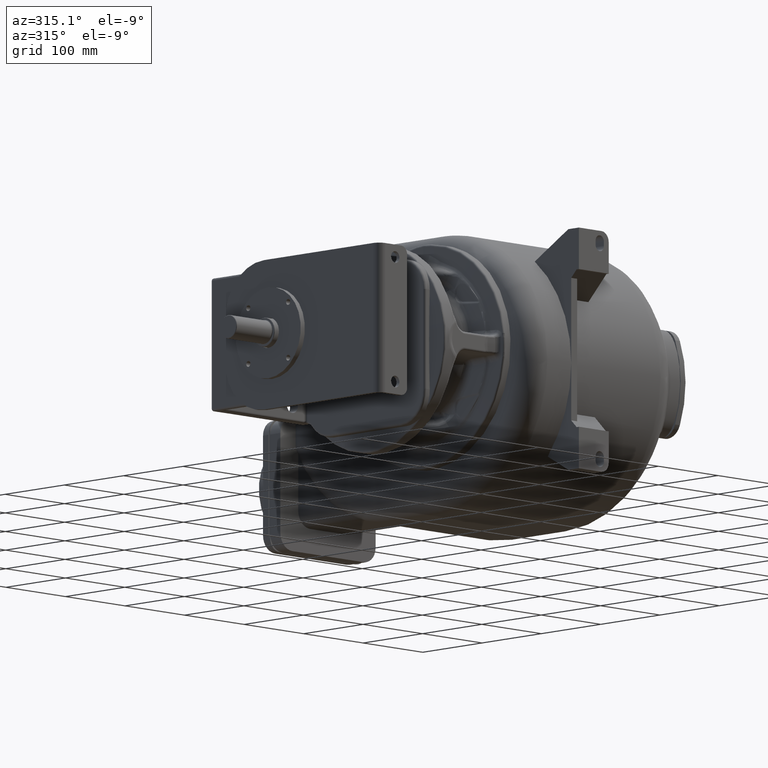
[diagram: clean part render]
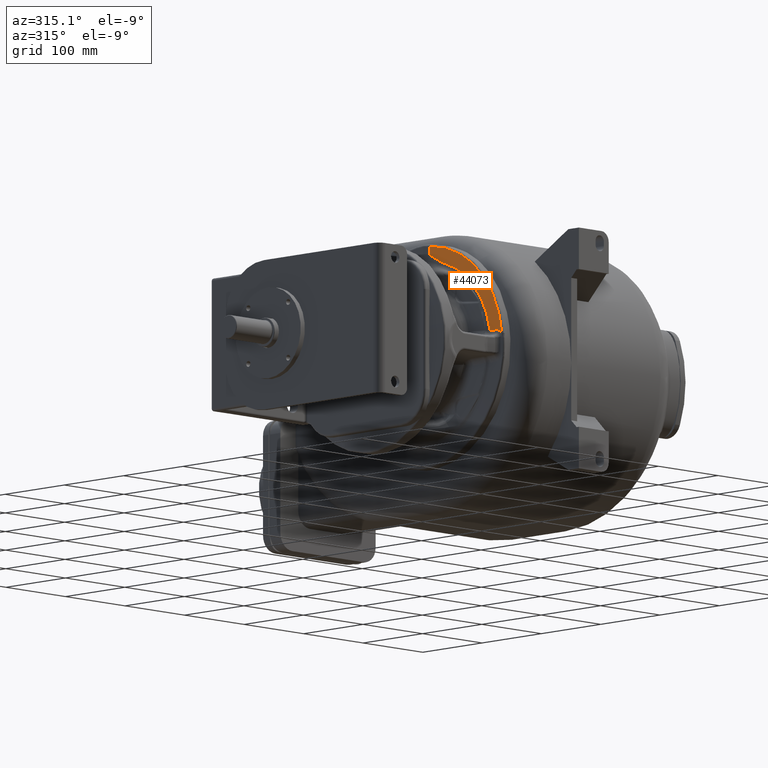
[diagram: same view with one face highlighted and labeled with its STEP entity id]
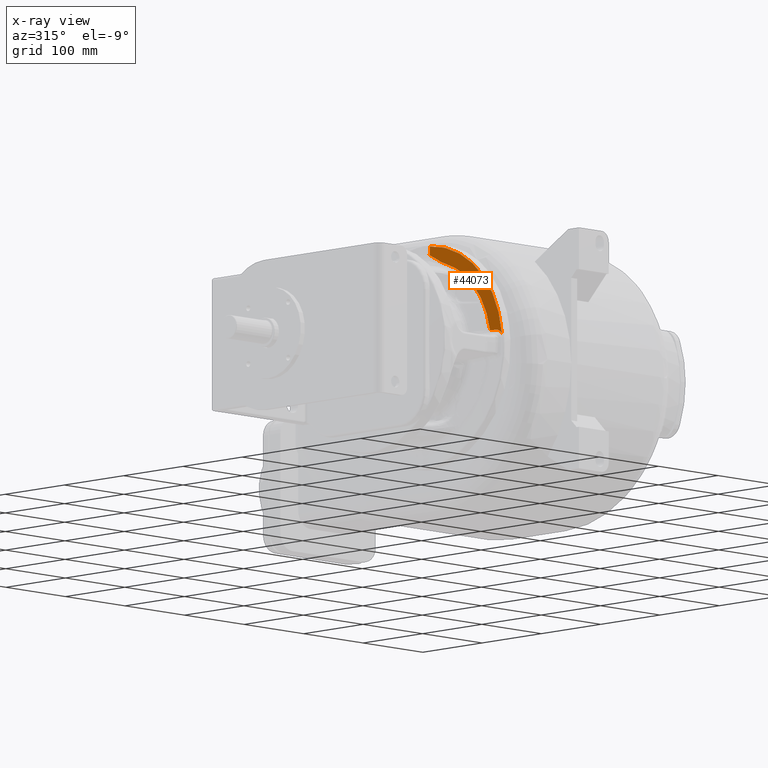
[diagram: x-ray of the same camera — body ghosted, the highlighted face saturated]
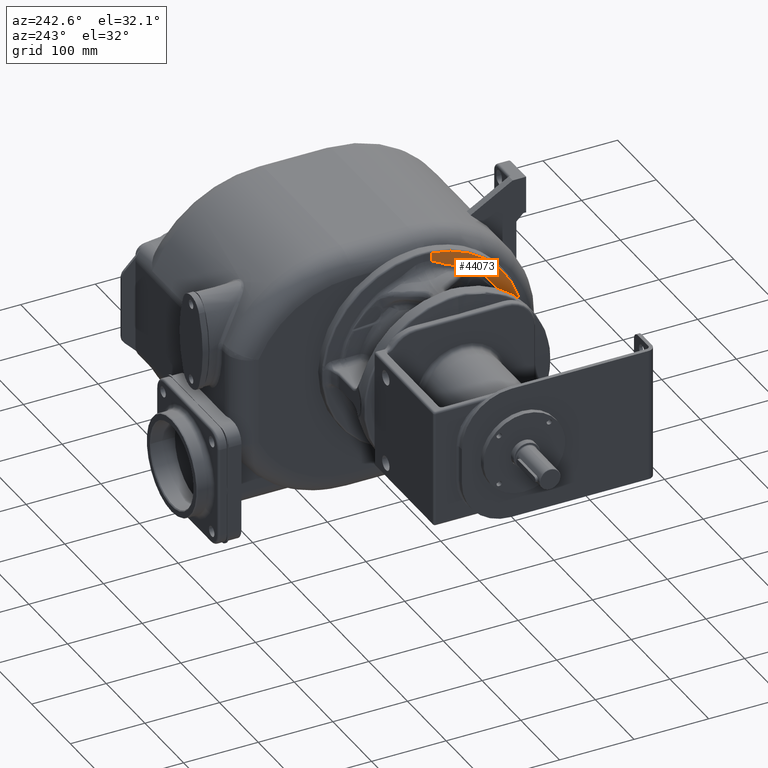
[diagram: same view with one face highlighted and labeled with its STEP entity id]
A machine part, auxiliary view. The second image highlights one B-rep face of the part: STEP entity #44073.
The next image is the same camera in x-ray: the body ghosted, the highlighted face saturated — about 0% of this face is hidden behind the body in this view.
A second angle (auxiliary view) of the same face is appended — the face is thin or edge-on in the first view.
In plain terms, the highlighted conical surface has half-angle 88 deg.
Its self-contained STEP definition (entity closure, byte-faithful):
#8521=CARTESIAN_POINT('',(-1.165842551305E2,1.8E2,0.E0));
#8522=DIRECTION('',(1.E0,0.E0,0.E0));
#8523=DIRECTION('',(0.E0,-8.055928439243E-2,9.967498190109E-1));
#8524=AXIS2_PLACEMENT_3D('',#8521,#8522,#8523);
#8526=CARTESIAN_POINT('',(-1.168798171493E2,5.735625674474E1,1.910878188171E1));
#8527=CARTESIAN_POINT('',(-1.169210198581E2,5.855966694110E1,1.916836518389E1));
#8528=CARTESIAN_POINT('',(-1.170010274678E2,6.089792819758E1,1.928410784437E1));
#8529=CARTESIAN_POINT('',(-1.171130718259E2,6.417655126071E1,1.944631688392E1));
#8530=CARTESIAN_POINT('',(-1.171840829582E2,6.625711039927E1,1.954919968380E1));
#8531=CARTESIAN_POINT('',(-1.172185369256E2,6.726722471379E1,1.959913672011E1));
#8533=CARTESIAN_POINT('',(-1.172185369238E2,1.8E2,0.E0));
#8534=DIRECTION('',(-1.E0,0.E0,0.E0));
#8535=DIRECTION('',(0.E0,-9.852214360073E-1,1.712854986031E-1));
#8536=AXIS2_PLACEMENT_3D('',#8533,#8534,#8535);
#8538=CARTESIAN_POINT('',(-1.172185368154E2,1.133798742975E2,9.302990717850E1));
#8539=CARTESIAN_POINT('',(-1.172185360093E2,1.135647022990E2,9.316227437963E1));
#8540=CARTESIAN_POINT('',(-1.172185059070E2,1.139437177598E2,9.343312496660E1));
#8541=CARTESIAN_POINT('',(-1.172183167907E2,1.145412702782E2,9.385941024134E1));
#8542=CARTESIAN_POINT('',(-1.172179985174E2,1.151642939519E2,9.430199851293E1));
#8543=CARTESIAN_POINT('',(-1.172175515021E2,1.158104575063E2,9.475853310711E1));
#8544=CARTESIAN_POINT('',(-1.172169824603E2,1.164740587730E2,9.522433844434E1));
#8545=CARTESIAN_POINT('',(-1.172163128499E2,1.171685208852E2,9.570706764520E1));
#8546=CARTESIAN_POINT('',(-1.172155464809E2,1.179158977222E2,9.621989671028E1));
#8547=CARTESIAN_POINT('',(-1.172146780051E2,1.187343653756E2,9.677287896231E1));
#8548=CARTESIAN_POINT('',(-1.172137360200E2,1.196548630786E2,9.738170347698E1));
#8549=CARTESIAN_POINT('',(-1.172128016808E2,1.206479256903E2,9.802148917607E1));
#8550=CARTESIAN_POINT('',(-1.172119838503E2,1.216317471850E2,9.863756766486E1));
#8551=CARTESIAN_POINT('',(-1.172113216764E2,1.226073313168E2,9.923026465383E1));
#8552=CARTESIAN_POINT('',(-1.172107766090E2,1.235915940311E2,9.981103394124E1));
#8553=CARTESIAN_POINT('',(-1.172103779246E2,1.246003926516E2,1.003876104206E2));
#8554=CARTESIAN_POINT('',(-1.172101256044E2,1.256483620897E2,1.009672454355E2));
#8555=CARTESIAN_POINT('',(-1.172100605760E2,1.263882677229E2,1.013626134630E2));
#8556=CARTESIAN_POINT('',(-1.172100603533E2,1.267675014529E2,1.015613913093E2));
#8558=CARTESIAN_POINT('',(-1.172100603533E2,1.267675014529E2,1.015613913093E2));
#8559=CARTESIAN_POINT('',(-1.172100602537E2,1.276112979688E2,1.020036570152E2));
#8560=CARTESIAN_POINT('',(-1.172100617634E2,1.292178677266E2,1.028187993180E2));
#8561=CARTESIAN_POINT('',(-1.172100603825E2,1.320577748821E2,1.041820271540E2));
#8562=CARTESIAN_POINT('',(-1.172100595450E2,1.362487916019E2,1.060381378145E2));
#8563=CARTESIAN_POINT('',(-1.172100619591E2,1.397068043739E2,1.073709466091E2));
#8564=CARTESIAN_POINT('',(-1.172100543490E2,1.423583350940E2,1.083181903907E2));
#8565=CARTESIAN_POINT('',(-1.172100761382E2,1.440279517105E2,1.088812226622E2));
#8566=CARTESIAN_POINT('',(-1.172097077547E2,1.453516541094E2,1.093192332206E2));
#8567=CARTESIAN_POINT('',(-1.172089713134E2,1.463514432409E2,1.096521977780E2));
#8568=CARTESIAN_POINT('',(-1.172080322542E2,1.471217952662E2,1.099132521045E2));
#8569=CARTESIAN_POINT('',(-1.172066091329E2,1.479431168032E2,1.101985252556E2));
#8570=CARTESIAN_POINT('',(-1.172046268872E2,1.486966820802E2,1.104736254670E2));
#8571=CARTESIAN_POINT('',(-1.172021145801E2,1.493374951870E2,1.107274907233E2));
#8572=CARTESIAN_POINT('',(-1.172001935124E2,1.496726144368E2,1.108763643674E2));
#8573=CARTESIAN_POINT('',(-1.171991278969E2,1.498233508606E2,1.109489858019E2));
#8575=CARTESIAN_POINT('',(-1.171991278969E2,1.498233508606E2,1.109489858019E2));
#8576=CARTESIAN_POINT('',(-1.171972061132E2,1.500951670541E2,1.110799475244E2));
#8577=CARTESIAN_POINT('',(-1.171930377829E2,1.506415416474E2,1.113498732313E2));
#8578=CARTESIAN_POINT('',(-1.171858545700E2,1.514682801428E2,1.117769184754E2));
#8579=CARTESIAN_POINT('',(-1.171777118351E2,1.523093864148E2,1.122284913684E2));
#8580=CARTESIAN_POINT('',(-1.171685871496E2,1.531697828531E2,1.127059739508E2));
#8581=CARTESIAN_POINT('',(-1.171584453661E2,1.540551897870E2,1.132111343064E2));
#8582=CARTESIAN_POINT('',(-1.171472449455E2,1.549718263494E2,1.137458622076E2));
#8583=CARTESIAN_POINT('',(-1.171348461169E2,1.559333041260E2,1.143161621185E2));
#8584=CARTESIAN_POINT('',(-1.171216463315E2,1.569136064544E2,1.149036754697E2));
#8585=CARTESIAN_POINT('',(-1.171085588355E2,1.578560349857E2,1.154704720485E2));
#8586=CARTESIAN_POINT('',(-1.170957253777E2,1.587628578553E2,1.160142424325E2));
#8587=CARTESIAN_POINT('',(-1.170827967868E2,1.596667289450E2,1.165519145019E2));
#8588=CARTESIAN_POINT('',(-1.170696556861E2,1.605833294267E2,1.170896061006E2));
#8589=CARTESIAN_POINT('',(-1.170563704506E2,1.615142720483E2,1.176253385191E2));
#8590=CARTESIAN_POINT('',(-1.170429733474E2,1.624657913490E2,1.181588569848E2));
#8591=CARTESIAN_POINT('',(-1.170293541747E2,1.634532689936E2,1.186950953128E2));
#8592=CARTESIAN_POINT('',(-1.170154923507E2,1.644896587600E2,1.192353692866E2));
#8593=CARTESIAN_POINT('',(-1.170019492797E2,1.655457774785E2,1.197586408855E2));
#8594=CARTESIAN_POINT('',(-1.169891972628E2,1.665929135170E2,1.202476930862E2));
#8595=CARTESIAN_POINT('',(-1.169776752563E2,1.675992923858E2,1.206872392527E2));
#8596=CARTESIAN_POINT('',(-1.169676494408E2,1.685357448913E2,1.210675547481E2));
#8597=CARTESIAN_POINT('',(-1.169622460123E2,1.690826993529E2,1.212734652601E2));
#8598=CARTESIAN_POINT('',(-1.169597662183E2,1.693385990095E2,1.213666450580E2));
#8600=CARTESIAN_POINT('',(-1.169597662183E2,1.693385990095E2,1.213666450580E2));
#8601=CARTESIAN_POINT('',(-1.169205464799E2,1.693364544670E2,1.224938880308E2));
#8602=CARTESIAN_POINT('',(-1.168404449319E2,1.693321307324E2,1.247959184219E2));
#8603=CARTESIAN_POINT('',(-1.167158320104E2,1.693255787529E2,1.283764727084E2));
#8604=CARTESIAN_POINT('',(-1.166287273427E2,1.693211151862E2,1.308788278720E2));
#8605=CARTESIAN_POINT('',(-1.165842551332E2,1.693188661217E2,1.321563161882E2));
#15576=CARTESIAN_POINT('',(-1.168798171493E2,5.735625674474E1,
1.910878188171E1));
#15577=CARTESIAN_POINT('',(-1.168750337735E2,5.721652057332E1,
1.910186046078E1));
#15578=CARTESIAN_POINT('',(-1.168655045016E2,5.693749489688E1,
1.908318384825E1));
#15579=CARTESIAN_POINT('',(-1.168513236096E2,5.651998928866E1,
1.904068568416E1));
#15580=CARTESIAN_POINT('',(-1.168372830638E2,5.610445313055E1,
1.898379115081E1));
#15581=CARTESIAN_POINT('',(-1.168234026691E2,5.569148772437E1,
1.891259291918E1));
#15582=CARTESIAN_POINT('',(-1.168097040754E2,5.528178620098E1,
1.882720000105E1));
#15583=CARTESIAN_POINT('',(-1.167962072786E2,5.487599471481E1,
1.872776600063E1));
#15584=CARTESIAN_POINT('',(-1.167829307057E2,5.447472758159E1,
1.861450334431E1));
#15585=CARTESIAN_POINT('',(-1.167698926570E2,5.407859932395E1,
1.848764197995E1));
#15586=CARTESIAN_POINT('',(-1.167571097920E2,5.368818107084E1,
1.834742846119E1));
#15587=CARTESIAN_POINT('',(-1.167445956809E2,5.330395330242E1,
1.819409246685E1));
#15588=CARTESIAN_POINT('',(-1.167323640834E2,5.292641168329E1,
1.802792424767E1));
#15589=CARTESIAN_POINT('',(-1.167204281870E2,5.255603692716E1,
1.784922284602E1));
#15590=CARTESIAN_POINT('',(-1.167088011682E2,5.219331097484E1,
1.765829798940E1));
#15591=CARTESIAN_POINT('',(-1.166974963581E2,5.183872173991E1,
1.745547263393E1));
#15592=CARTESIAN_POINT('',(-1.166865261961E2,5.149273433328E1,
1.724109636395E1));
#15593=CARTESIAN_POINT('',(-1.166759022821E2,5.115579808441E1,
1.701559155650E1));
#15594=CARTESIAN_POINT('',(-1.166656340737E2,5.082829251460E1,
1.677933484700E1));
#15595=CARTESIAN_POINT('',(-1.166557294645E2,5.051054655917E1,
1.653267365085E1));
#15596=CARTESIAN_POINT('',(-1.166461967343E2,5.020289754450E1,
1.627594656049E1));
#15597=CARTESIAN_POINT('',(-1.166370426296E2,4.990564327267E1,
1.600954384886E1));
#15598=CARTESIAN_POINT('',(-1.166282748347E2,4.961911349595E1,
1.573391821270E1));
#15599=CARTESIAN_POINT('',(-1.166199014122E2,4.934364729805E1,
1.544952889518E1));
#15600=CARTESIAN_POINT('',(-1.166119301495E2,4.907956841055E1,
1.515682919421E1));
#15601=CARTESIAN_POINT('',(-1.166043679240E2,4.882718357650E1,
1.485627730100E1));
#15602=CARTESIAN_POINT('',(-1.165972206995E2,4.858673431246E1,
1.454842494798E1));
#15603=CARTESIAN_POINT('',(-1.165904878134E2,4.835842950764E1,
1.423376326425E1));
#15604=CARTESIAN_POINT('',(-1.165862912570E2,4.821451529926E1,
1.401987112451E1));
#15605=CARTESIAN_POINT('',(-1.165842578467E2,4.814461720955E1,
1.391190034019E1));
#20410=CARTESIAN_POINT('',(-1.165842551332E2,1.693188661217E2,
1.321563161882E2));
#30201=VERTEX_POINT('',#8558);
#30202=VERTEX_POINT('',#8573);
#30205=VERTEX_POINT('',#8538);
#30207=CARTESIAN_POINT('',(-1.172185369238E2,6.726722471383E1,
1.959913672002E1));
#30208=VERTEX_POINT('',#30207);
#30235=VERTEX_POINT('',#20410);
#30258=VERTEX_POINT('',#8600);
#30287=CARTESIAN_POINT('',(-1.165842551305E2,4.814463523260E1,
1.391191255598E1));
#30288=VERTEX_POINT('',#30287);
#30341=VERTEX_POINT('',#8526);
#44051=CARTESIAN_POINT('',(-1.169013958625E2,1.8E2,0.E0));
#44052=DIRECTION('',(1.E0,0.E0,0.E0));
#44053=DIRECTION('',(0.E0,-1.E0,0.E0));
#44054=AXIS2_PLACEMENT_3D('',#44051,#44052,#44053);
#44055=CONICAL_SURFACE('',#44054,1.235055264155E2,8.8E1);
#44057=ORIENTED_EDGE('',*,*,#44056,.T.);
#44059=ORIENTED_EDGE('',*,*,#44058,.F.);
#44061=ORIENTED_EDGE('',*,*,#44060,.T.);
#44063=ORIENTED_EDGE('',*,*,#44062,.T.);
#44064=ORIENTED_EDGE('',*,*,#44041,.T.);
#44066=ORIENTED_EDGE('',*,*,#44065,.T.);
#44068=ORIENTED_EDGE('',*,*,#44067,.T.);
#44070=ORIENTED_EDGE('',*,*,#44069,.T.);
#44071=EDGE_LOOP('',(#44057,#44059,#44061,#44063,#44064,#44066,#44068,#44070));
#44072=FACE_OUTER_BOUND('',#44071,.F.);
#44073=ADVANCED_FACE('',(#44072),#44055,.T.);
#8525=CIRCLE('',#8524,1.325872487418E2);
#8532=B_SPLINE_CURVE_WITH_KNOTS('',3,(#8526,#8527,#8528,#8529,#8530,#8531),
.UNSPECIFIED.,.F.,.F.,(4,1,1,4),(0.E0,3.333333333333E-1,6.666666666667E-1,1.E0),
.UNSPECIFIED.);
#8537=CIRCLE('',#8536,1.144237946578E2);
#8557=B_SPLINE_CURVE_WITH_KNOTS('',3,(#8538,#8539,#8540,#8541,#8542,#8543,#8544,
#8545,#8546,#8547,#8548,#8549,#8550,#8551,#8552,#8553,#8554,#8555,#8556),
.UNSPECIFIED.,.F.,.F.,(4,1,1,1,1,1,1,1,1,1,1,1,1,1,1,1,4),(0.E0,6.25E-2,1.25E-1,
1.875E-1,2.5E-1,3.125E-1,3.75E-1,4.375E-1,5.E-1,5.625E-1,6.25E-1,6.875E-1,
7.5E-1,8.125E-1,8.75E-1,9.375E-1,1.E0),.UNSPECIFIED.);
#8574=B_SPLINE_CURVE_WITH_KNOTS('',3,(#8558,#8559,#8560,#8561,#8562,#8563,#8564,
#8565,#8566,#8567,#8568,#8569,#8570,#8571,#8572,#8573),.UNSPECIFIED.,.F.,.F.,(4,
1,1,1,1,1,1,1,1,1,1,1,1,4),(0.E0,3.124999863618E-2,6.249999868018E-2,
1.249999987682E-1,2.499999989441E-1,3.124999990321E-1,3.749999991201E-1,
4.374999992081E-1,4.999999992961E-1,5.624999993841E-1,6.249999994721E-1,
7.499999996480E-1,8.749999998240E-1,1.E0),.UNSPECIFIED.);
#8599=B_SPLINE_CURVE_WITH_KNOTS('',3,(#8575,#8576,#8577,#8578,#8579,#8580,#8581,
#8582,#8583,#8584,#8585,#8586,#8587,#8588,#8589,#8590,#8591,#8592,#8593,#8594,
#8595,#8596,#8597,#8598),.UNSPECIFIED.,.F.,.F.,(4,1,1,1,1,1,1,1,1,1,1,1,1,1,1,1,
1,1,1,1,1,4),(0.E0,4.761904761905E-2,9.523809523810E-2,1.428571428571E-1,
1.904761904762E-1,2.380952380952E-1,2.857142857143E-1,3.333333333333E-1,
3.809523809524E-1,4.285714285714E-1,4.761904761905E-1,5.238095238095E-1,
5.714285714286E-1,6.190476190476E-1,6.666666666667E-1,7.142857142857E-1,
7.619047619048E-1,8.095238095238E-1,8.571428571429E-1,9.047619047619E-1,
9.523809523810E-1,1.E0),.UNSPECIFIED.);
#8606=B_SPLINE_CURVE_WITH_KNOTS('',3,(#8600,#8601,#8602,#8603,#8604,#8605),
.UNSPECIFIED.,.F.,.F.,(4,1,1,4),(0.E0,3.333333333333E-1,6.666666666667E-1,1.E0),
.UNSPECIFIED.);
#15606=B_SPLINE_CURVE_WITH_KNOTS('',3,(#15576,#15577,#15578,#15579,#15580,
#15581,#15582,#15583,#15584,#15585,#15586,#15587,#15588,#15589,#15590,#15591,
#15592,#15593,#15594,#15595,#15596,#15597,#15598,#15599,#15600,#15601,#15602,
#15603,#15604,#15605),.UNSPECIFIED.,.F.,.F.,(4,1,1,1,1,1,1,1,1,1,1,1,1,1,1,1,1,
1,1,1,1,1,1,1,1,1,1,4),(0.E0,3.703703703704E-2,7.407407407407E-2,
1.111111111111E-1,1.481481481481E-1,1.851851851852E-1,2.222222222222E-1,
2.592592592593E-1,2.962962962963E-1,3.333333333333E-1,3.703703703704E-1,
4.074074074074E-1,4.444444444444E-1,4.814814814815E-1,5.185185185185E-1,
5.555555555556E-1,5.925925925926E-1,6.296296296296E-1,6.666666666667E-1,
7.037037037037E-1,7.407407407407E-1,7.777777777778E-1,8.148148148148E-1,
8.518518518519E-1,8.888888888889E-1,9.259259259259E-1,9.629629629630E-1,1.E0),
.UNSPECIFIED.);
#44041=EDGE_CURVE('',#30205,#30201,#8557,.T.);
#44056=EDGE_CURVE('',#30235,#30288,#8525,.T.);
#44058=EDGE_CURVE('',#30341,#30288,#15606,.T.);
#44060=EDGE_CURVE('',#30341,#30208,#8532,.T.);
#44062=EDGE_CURVE('',#30208,#30205,#8537,.T.);
#44065=EDGE_CURVE('',#30201,#30202,#8574,.T.);
#44067=EDGE_CURVE('',#30202,#30258,#8599,.T.);
#44069=EDGE_CURVE('',#30258,#30235,#8606,.T.);